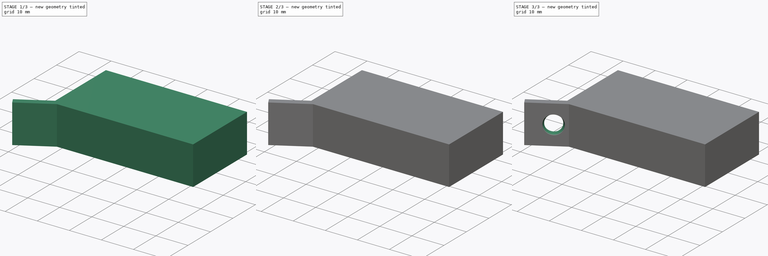
[diagram: build sequence overview — one tinted view per stage of 3, left to right]
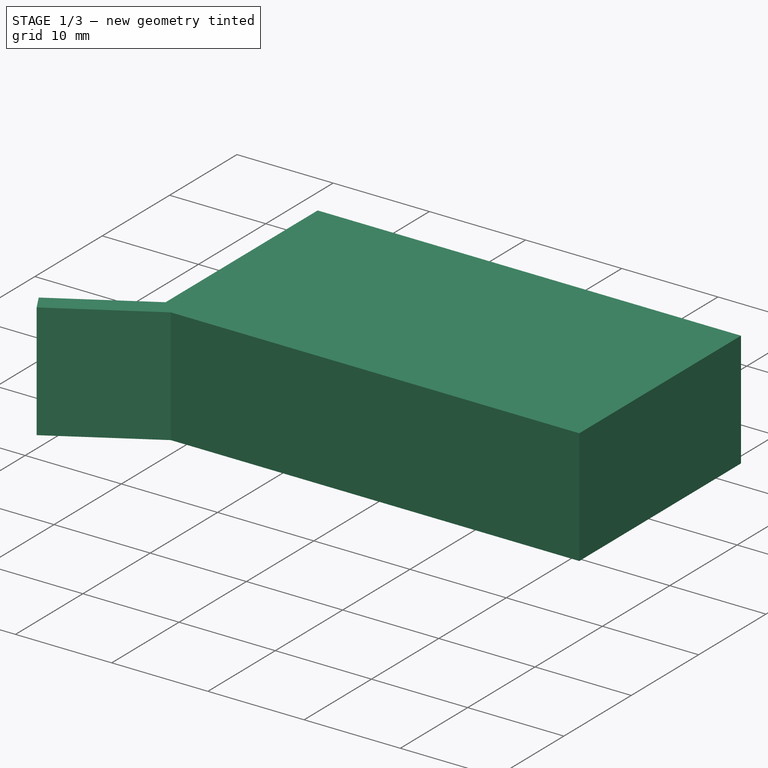
[diagram: stage 1 of 3 — iso view after this stage's code; geometry added in this stage tinted green]
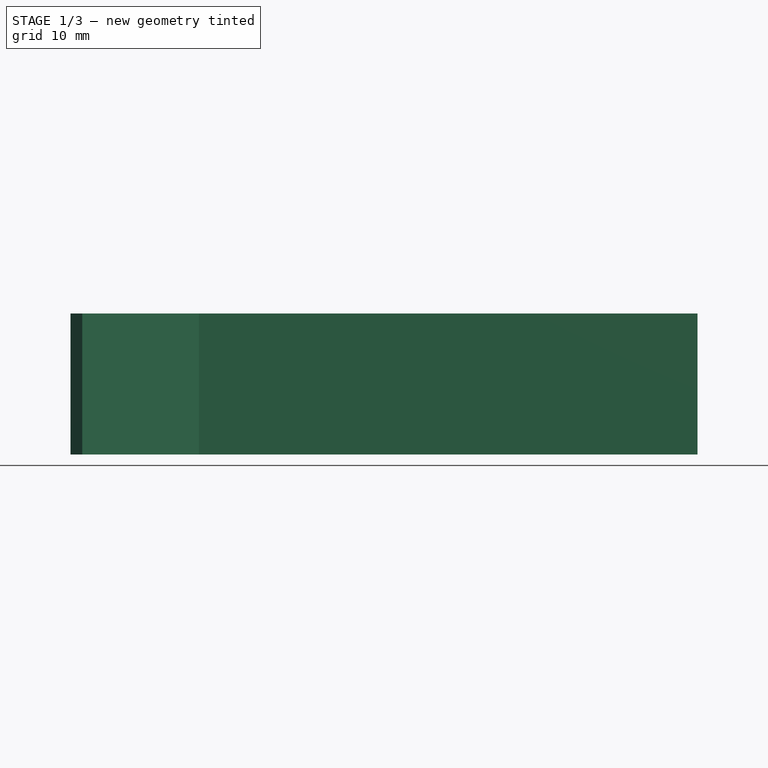
[diagram: stage 1 of 3 — front view after this stage's code; geometry added in this stage tinted green]
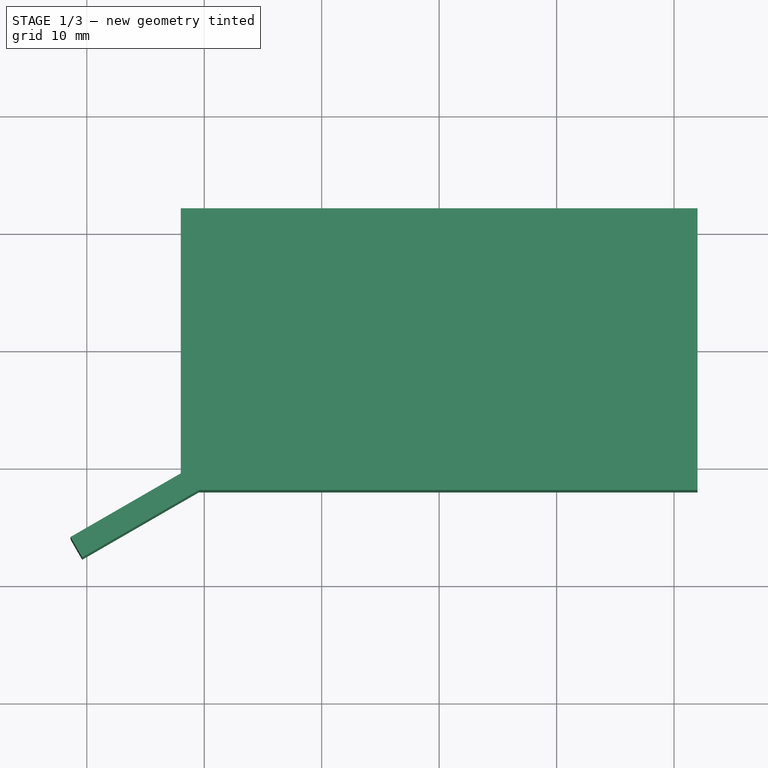
[diagram: stage 1 of 3 — top view after this stage's code; geometry added in this stage tinted green]
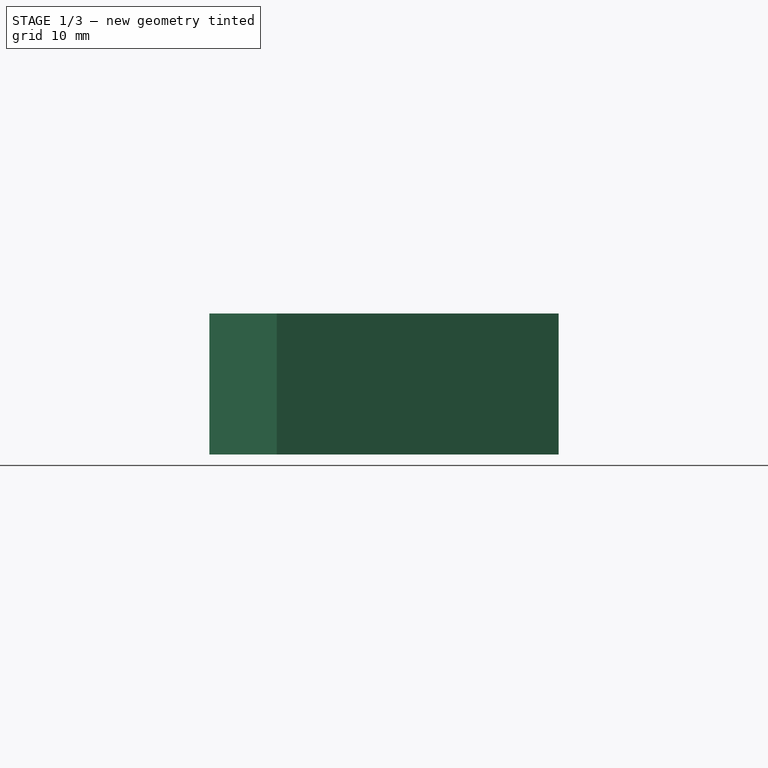
[diagram: stage 1 of 3 — right view after this stage's code; geometry added in this stage tinted green]
FCSTD DOCUMENT  (FreeCAD 1.0R39109 (Git))
Label: Cap
License: All rights reserved
LicenseURL: https://en.wikipedia.org/wiki/All_rights_reserved
objects: PartDesign::SubtractiveCone×2, Sketcher::SketchObject×1, PartDesign::Pad×1, PartDesign::AdditiveBox×1, PartDesign::SubtractiveBox×1, PartDesign::Body×1
note: 18 computed .brp shape members not serialized (recipe doc carries the construction recipe); baked Part::Feature solids carry a one-line shape summary decoded from their .brp

FEATURE [Sketcher::SketchObject] Sketch001
  ArcFitTolerance = 0
  AttachmentSupport = -> [XY_Plane]
  FullyConstrained = true
  MakeInternals = false
  MapMode = 5
  sketch-geometry (4):
    g0: LineSegment StartX=-2 StartY=22 StartZ=0 EndX=42 EndY=22 EndZ=0
    g1: LineSegment StartX=42 StartY=22 StartZ=0 EndX=42 EndY=-2 EndZ=0
    g2: LineSegment StartX=42 StartY=-2 StartZ=0 EndX=-2 EndY=-2 EndZ=0
    g3: LineSegment StartX=-2 StartY=-2 StartZ=0 EndX=-2 EndY=22 EndZ=0
  constraints (12):
    c: Coincident(g0,g1)
    c: Coincident(g1,g2)
    c: Coincident(g2,g3)
    c: Coincident(g3,g0)
    c: Horizontal(g0)
    c: Horizontal(g2)
    c: Vertical(g1)
    c: Vertical(g3)
    c: DistanceX(g2) = -2
    c: DistanceY(g2) = -2
    c: DistanceX(g0,g0) = 44
    c: DistanceY(g1,g1) = 24
FEATURE [PartDesign::Pad] Pad
  Direction = (0,0,1)
  Length = 12
  Length2 = 10
  Profile = -> Sketch001
  ReferenceAxis = -> Sketch001 [N_Axis]
  Suppressed = false
  Type = 0
FEATURE [PartDesign::AdditiveBox] Box
  AttacherType = Attacher::AttachEngine3D
  AttachmentOffset = pos=(-1,0,0) rot=(0,0,-1;2.61799rad)
  AttachmentSupport = -> [XY_Plane]
  BaseFeature = -> Pad
  Height = 12
  Length = 12
  MapMode = 5
  Placement = pos=(-1,0,0) rot=(0,0,-1;2.61799rad)
  Suppressed = false
  Width = 2
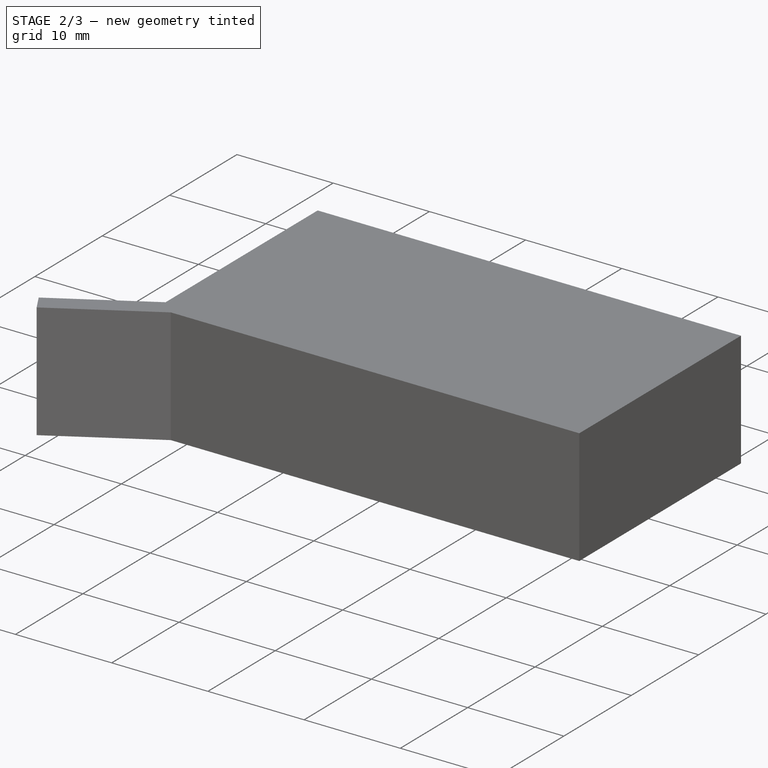
[diagram: stage 2 of 3 — iso view after this stage's code; geometry added in this stage tinted green]
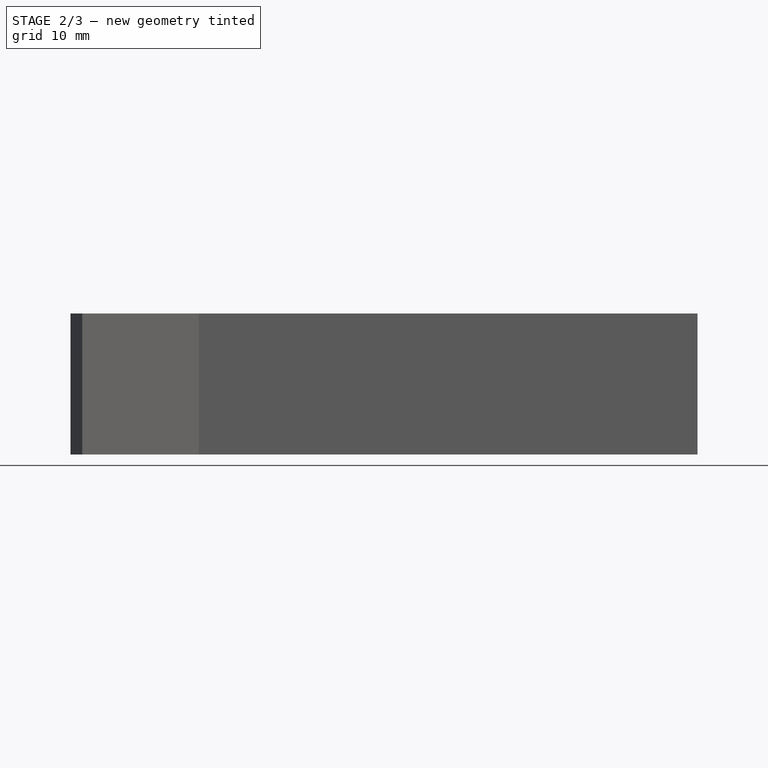
[diagram: stage 2 of 3 — front view after this stage's code; geometry added in this stage tinted green]
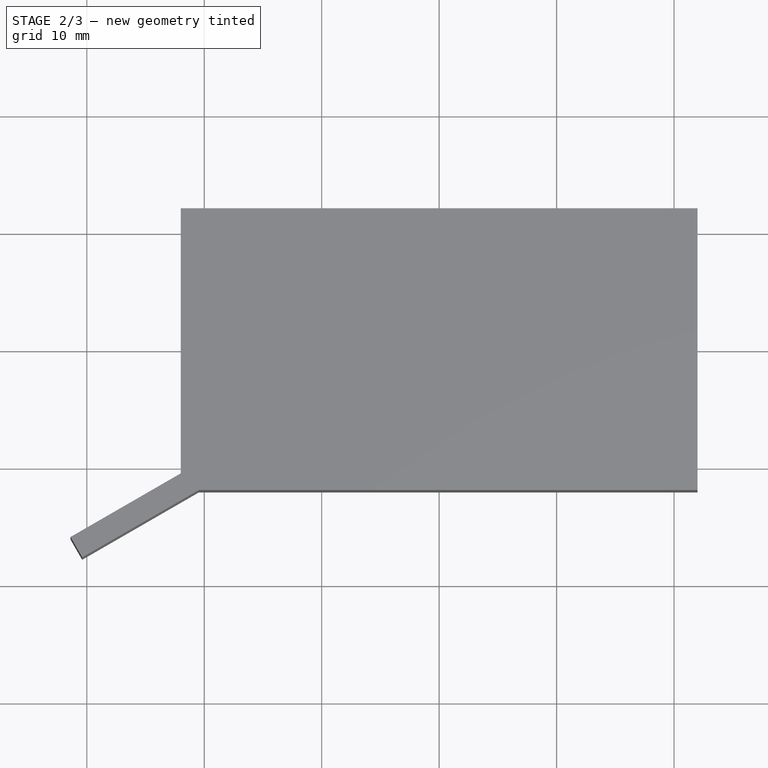
[diagram: stage 2 of 3 — top view after this stage's code; geometry added in this stage tinted green]
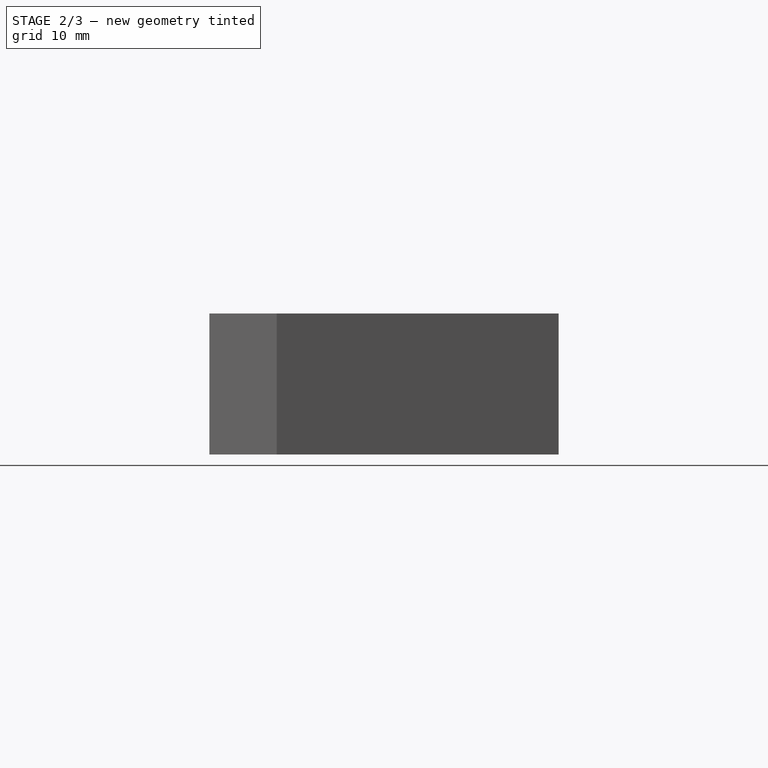
[diagram: stage 2 of 3 — right view after this stage's code; geometry added in this stage tinted green]
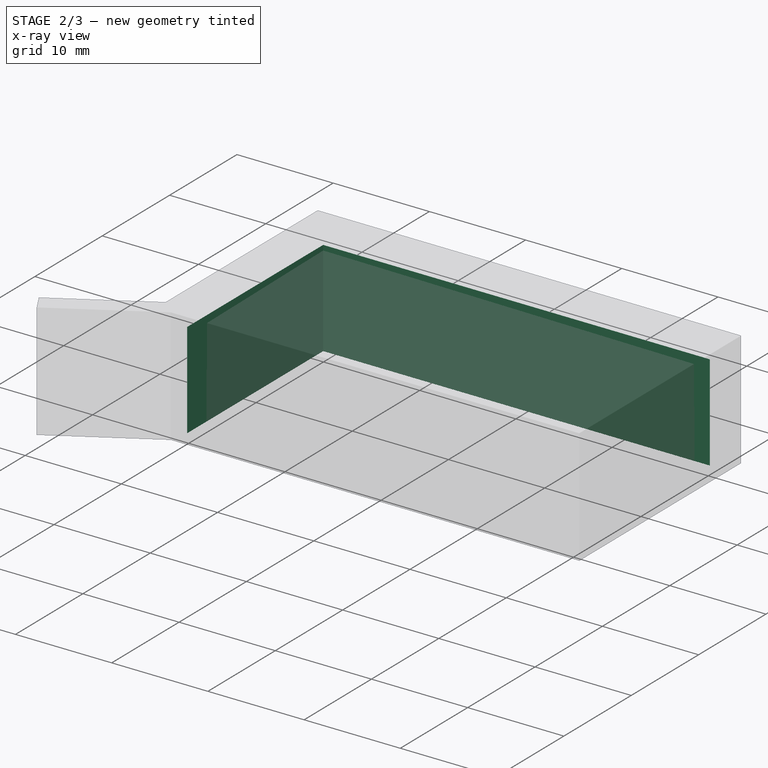
[diagram: stage 2 of 3 — x-ray composite at the iso view; earlier geometry ghosted, this stage's added geometry solid]
FEATURE [PartDesign::SubtractiveBox] Box001
  AttacherType = Attacher::AttachEngine3D
  AttachmentOffset = pos=(-0.1,-0.1,0) rot=(0,0,1;0rad)
  AttachmentSupport = -> [XY_Plane]
  BaseFeature = -> Box
  Height = 10
  Length = 40.2
  MapMode = 5
  Placement = pos=(-0.1,-0.1,0) rot=(0,0,1;0rad)
  Suppressed = false
  Width = 20.2
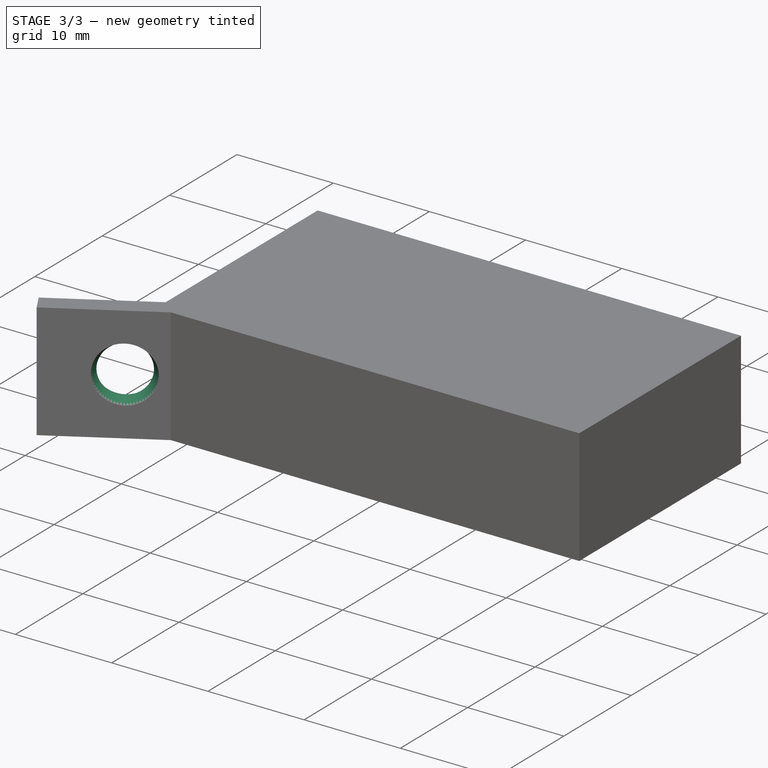
[diagram: stage 3 of 3 — iso view after this stage's code; geometry added in this stage tinted green]
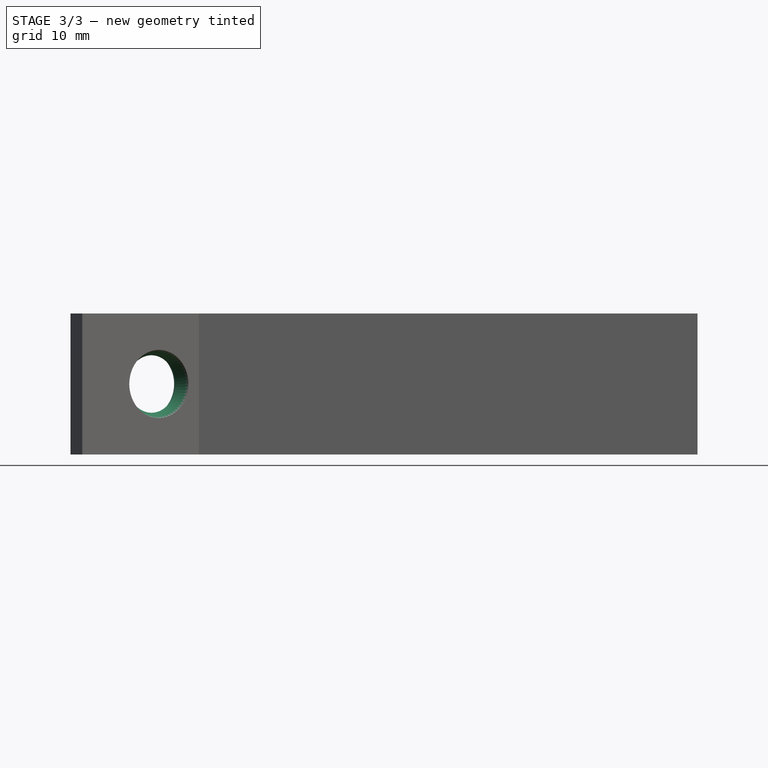
[diagram: stage 3 of 3 — front view after this stage's code; geometry added in this stage tinted green]
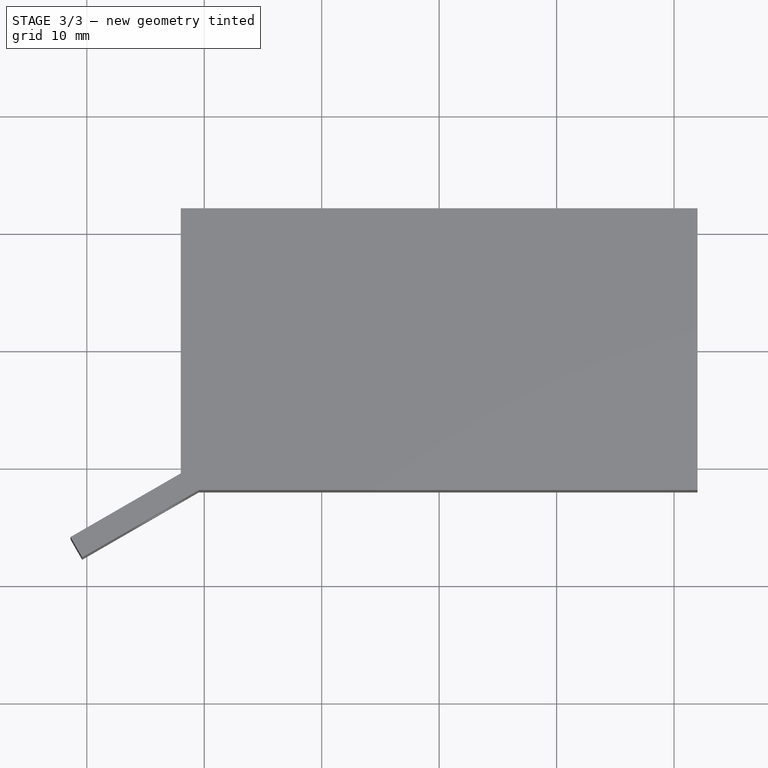
[diagram: stage 3 of 3 — top view after this stage's code; geometry added in this stage tinted green]
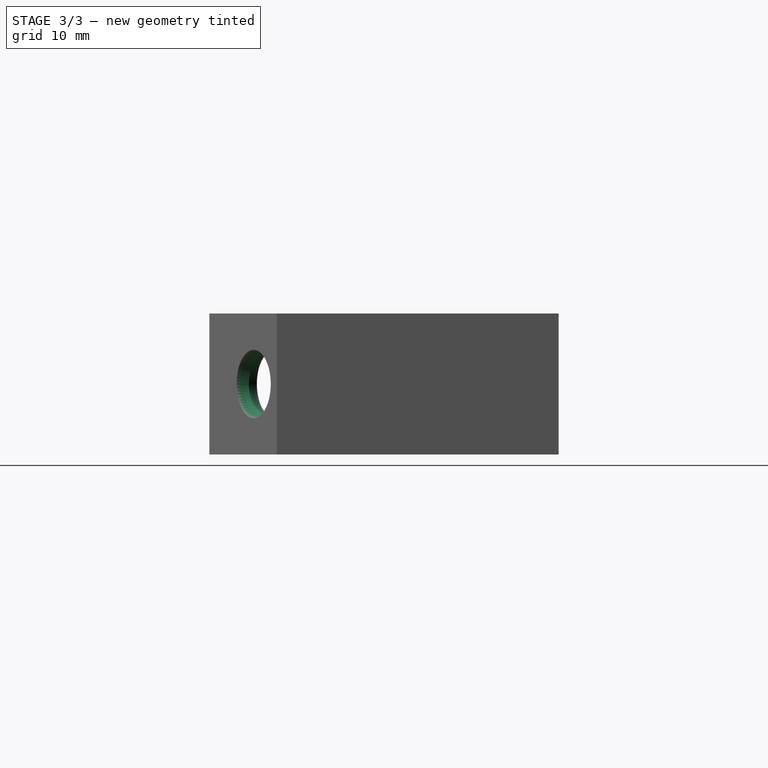
[diagram: stage 3 of 3 — right view after this stage's code; geometry added in this stage tinted green]
FEATURE [PartDesign::SubtractiveCone] Cone
  Angle = 360
  AttacherType = Attacher::AttachEngine3D
  AttachmentOffset = pos=(-5,6,2) rot=(0,1,0;0.523599rad)
  AttachmentSupport = -> [XZ_Plane]
  BaseFeature = -> Box001
  Height = 2.5
  MapMode = 5
  Placement = pos=(-5,-2,6) rot=(0.935113,0.250563,0.250563;1.63783rad)
  Radius1 = 2
  Radius2 = 3
  Suppressed = false
FEATURE [PartDesign::SubtractiveCone] Cone001
  Angle = 360
  AttacherType = Attacher::AttachEngine3D
  AttachmentOffset = pos=(-4,6,4) rot=(0,-1,0;2.61799rad)
  AttachmentSupport = -> [XZ_Plane]
  BaseFeature = -> Cone
  Height = 2.5
  MapMode = 5
  Placement = pos=(-4,-4,6) rot=(0.186157,-0.694747,-0.694747;2.77349rad)
  Radius1 = 2
  Radius2 = 3
  Suppressed = false
FEATURE [PartDesign::Body] Body
  AllowCompound = false
  Group = -> [Sketch001,Pad,Box,Box001,Cone,Cone001]
  Origin = -> Origin
  Tip = -> Cone001
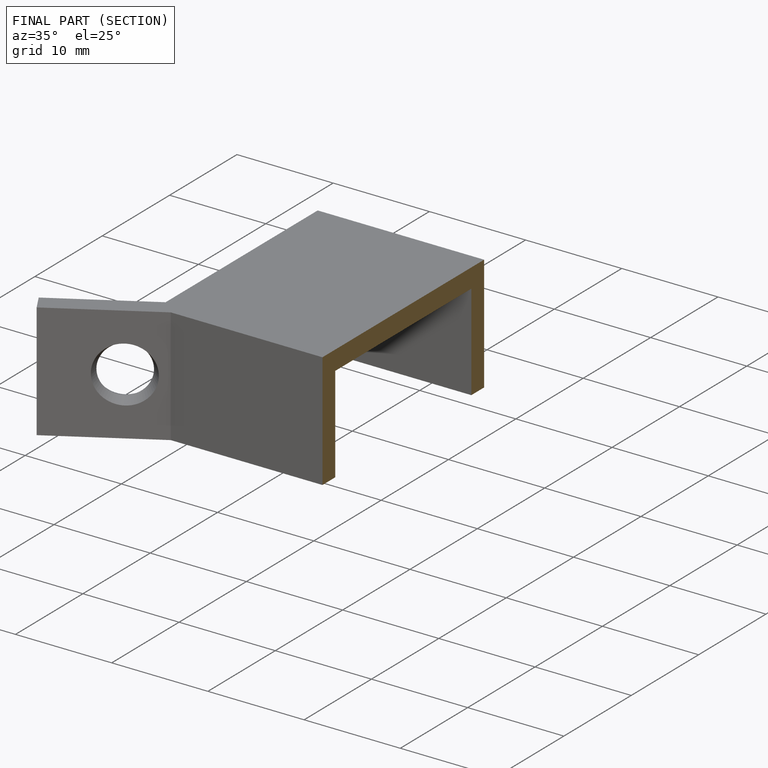
[diagram: finished part — half-section view (interior)]
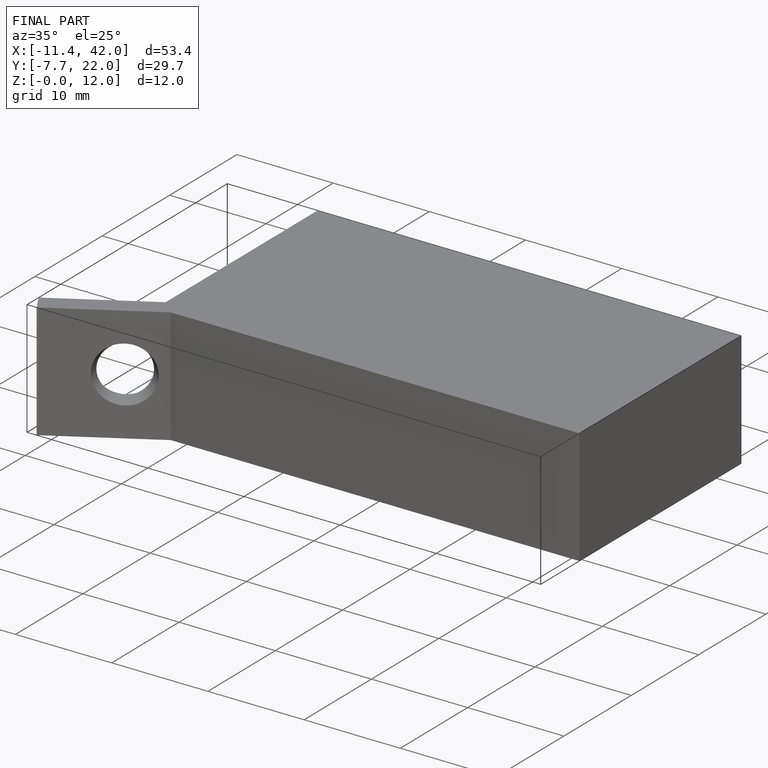
[diagram: finished part — iso view with bounding-box wireframe]
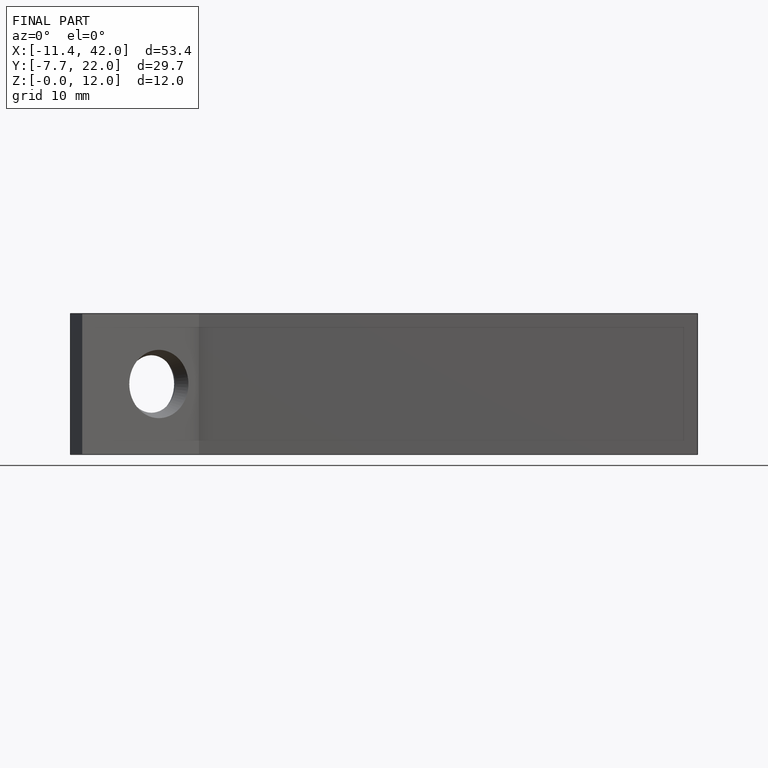
[diagram: finished part — front view with bounding-box wireframe]
